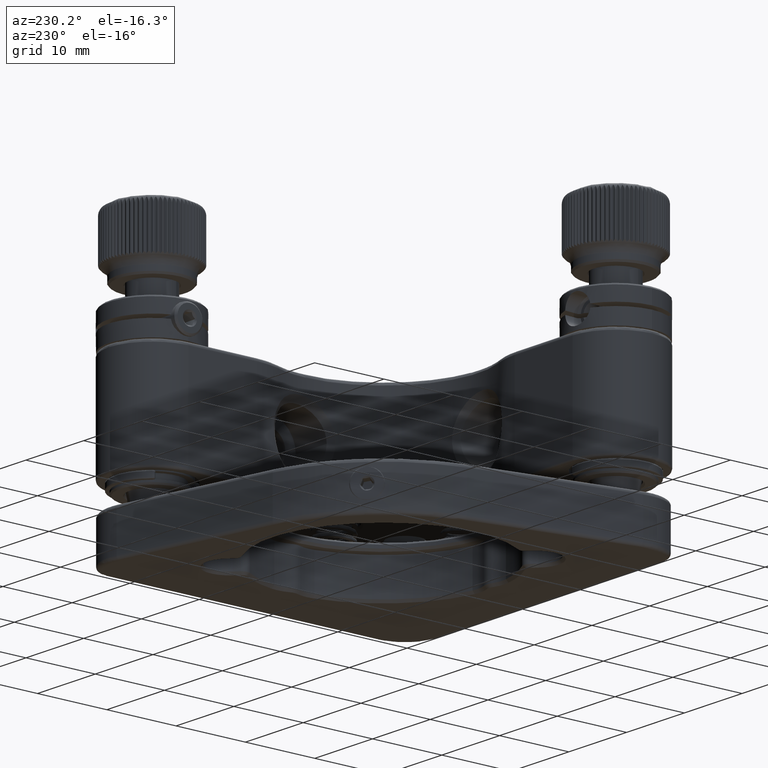
[diagram: clean part render]
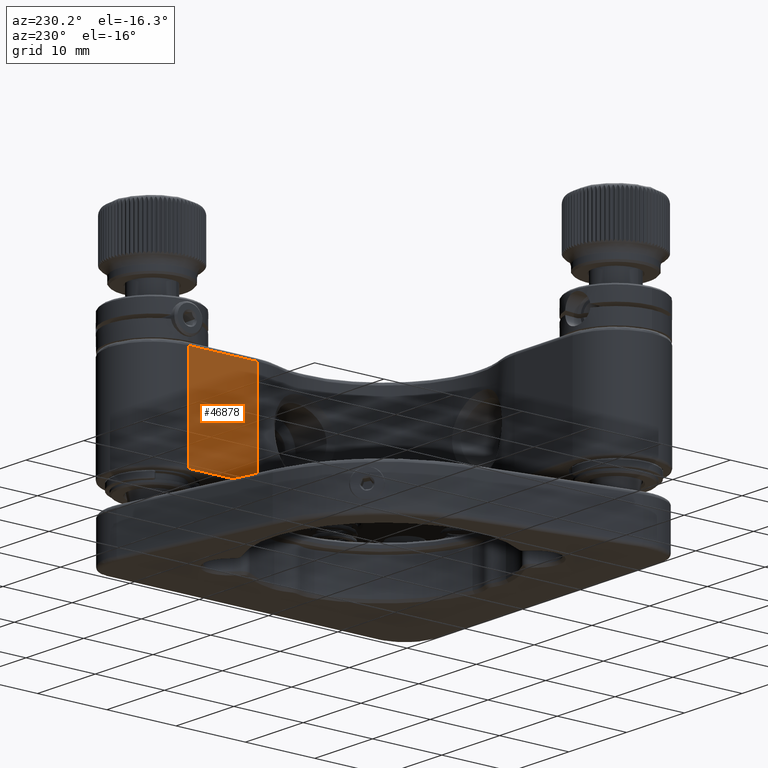
[diagram: same view with one face highlighted and labeled with its STEP entity id]
A machine part, auxiliary view. The second image highlights one B-rep face of the part: STEP entity #46878.
In plain terms, the highlighted planar face has unit normal (1, 0, 0).
Its self-contained STEP definition (entity closure, byte-faithful):
#211 = DIRECTION ( 'NONE',  ( 0.000000000000000000, 0.000000000000000000, 1.000000000000000000 ) ) ;
#511 = VERTEX_POINT ( 'NONE', #26065 ) ;
#1135 = PLANE ( 'NONE',  #37206 ) ;
#2683 = VECTOR ( 'NONE', #25569, 1000.000000000000000 ) ;
#3073 = VECTOR ( 'NONE', #46788, 1000.000000000000000 ) ;
#5204 = EDGE_CURVE ( 'NONE', #37274, #22054, #9818, .T. ) ;
#6609 = EDGE_LOOP ( 'NONE', ( #11748, #46054, #38876, #17530 ) ) ;
#6767 = CARTESIAN_POINT ( 'NONE',  ( 12.00000000000000000, 18.25000000000000000, -7.200000000000001066 ) ) ;
#9818 = LINE ( 'NONE', #53007, #23844 ) ;
#11452 = CARTESIAN_POINT ( 'NONE',  ( 12.00000000000000000, 18.25000000000000000, -0.1000000000000002554 ) ) ;
#11657 = CARTESIAN_POINT ( 'NONE',  ( 12.00000000000000000, 13.25567791049999933, -7.200000000000001066 ) ) ;
#11748 = ORIENTED_EDGE ( 'NONE', *, *, #5204, .T. ) ;
#11887 = EDGE_CURVE ( 'NONE', #511, #21841, #38582, .T. ) ;
#15809 = LINE ( 'NONE', #11452, #3073 ) ;
#17530 = ORIENTED_EDGE ( 'NONE', *, *, #47335, .T. ) ;
#21841 = VERTEX_POINT ( 'NONE', #6767 ) ;
#22054 = VERTEX_POINT ( 'NONE', #43837 ) ;
#23773 = CARTESIAN_POINT ( 'NONE',  ( 12.00000000000000000, 8.261355821000000432, -7.200000000000001066 ) ) ;
#23844 = VECTOR ( 'NONE', #27502, 1000.000000000000000 ) ;
#25569 = DIRECTION ( 'NONE',  ( 0.000000000000000000, 1.000000000000000000, 0.000000000000000000 ) ) ;
#26065 = CARTESIAN_POINT ( 'NONE',  ( 11.99999999999999822, 8.261355818948965535, -7.200000000000001066 ) ) ;
#27502 = DIRECTION ( 'NONE',  ( -0.000000000000000000, 1.000000000000000000, -0.000000000000000000 ) ) ;
#30575 = CARTESIAN_POINT ( 'NONE',  ( 11.99999999999995559, 8.261355818948967311, 6.999999999941624473 ) ) ;
#32163 = DIRECTION ( 'NONE',  ( 0.000000000000000000, 1.000000000000000000, 0.000000000000000000 ) ) ;
#37206 = AXIS2_PLACEMENT_3D ( 'NONE', #23773, #45180, #32163 ) ;
#37274 = VERTEX_POINT ( 'NONE', #30575 ) ;
#38582 = LINE ( 'NONE', #11657, #2683 ) ;
#38876 = ORIENTED_EDGE ( 'NONE', *, *, #11887, .F. ) ;
#39636 = CARTESIAN_POINT ( 'NONE',  ( 11.99999999999999645, 8.261355816897932414, -0.1000000000000002554 ) ) ;
#43837 = CARTESIAN_POINT ( 'NONE',  ( 11.99999999993344524, 18.25000000000000355, 6.999999999967189801 ) ) ;
#44588 = VECTOR ( 'NONE', #211, 1000.000000000000000 ) ;
#45180 = DIRECTION ( 'NONE',  ( 1.000000000000000000, 0.000000000000000000, 0.000000000000000000 ) ) ;
#46054 = ORIENTED_EDGE ( 'NONE', *, *, #52775, .F. ) ;
#46788 = DIRECTION ( 'NONE',  ( 0.000000000000000000, 0.000000000000000000, 1.000000000000000000 ) ) ;
#46878 = ADVANCED_FACE ( 'NONE', ( #53873 ), #1135, .F. ) ;
#47335 = EDGE_CURVE ( 'NONE', #511, #37274, #52409, .T. ) ;
#52409 = LINE ( 'NONE', #39636, #44588 ) ;
#52775 = EDGE_CURVE ( 'NONE', #21841, #22054, #15809, .T. ) ;
#53007 = CARTESIAN_POINT ( 'NONE',  ( 12.00000000000000000, 13.25567791049999933, 6.999999999794894734 ) ) ;
#53873 = FACE_OUTER_BOUND ( 'NONE', #6609, .T. ) ;